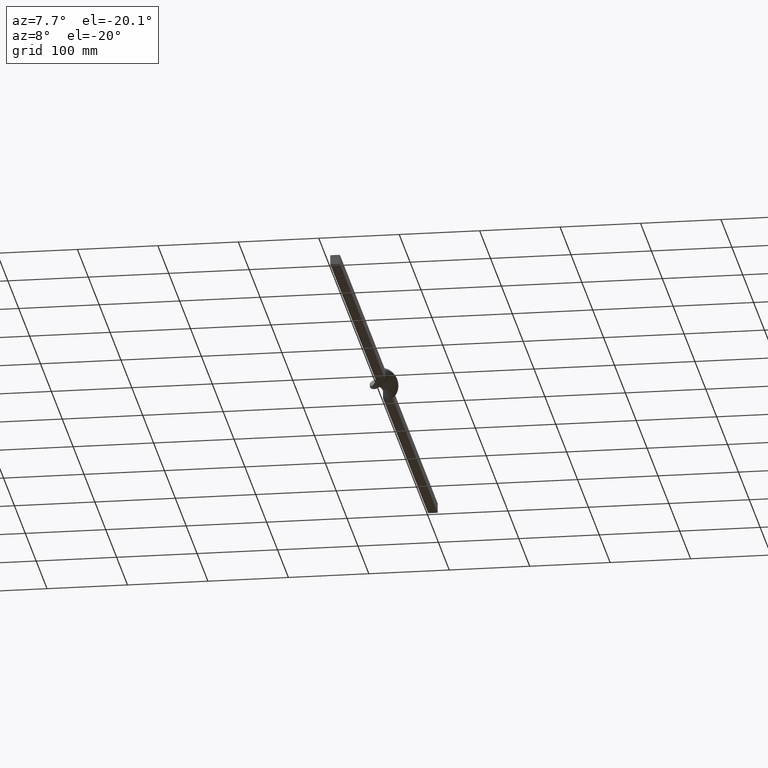
[diagram: clean part render]
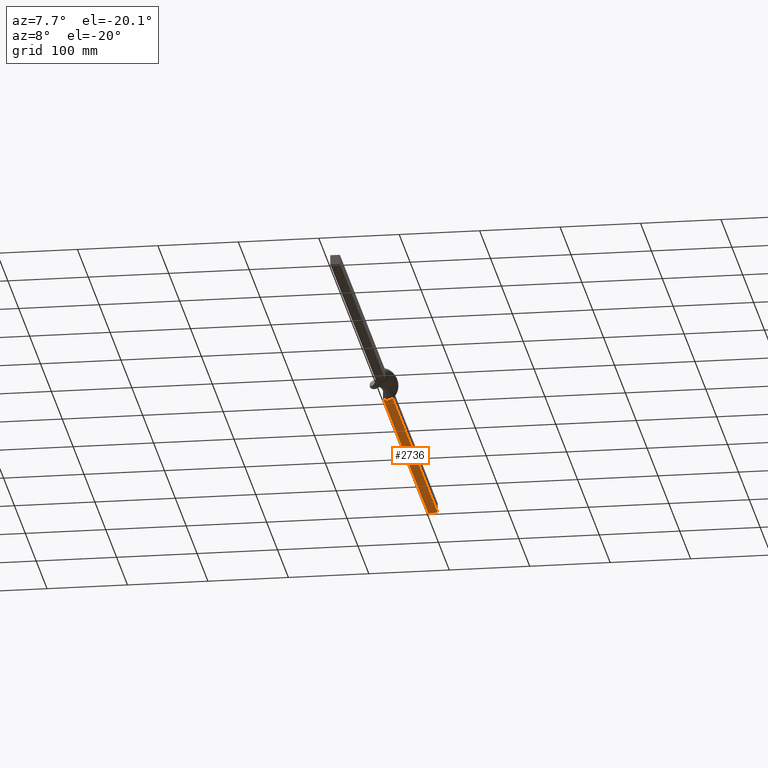
[diagram: same view with one face highlighted and labeled with its STEP entity id]
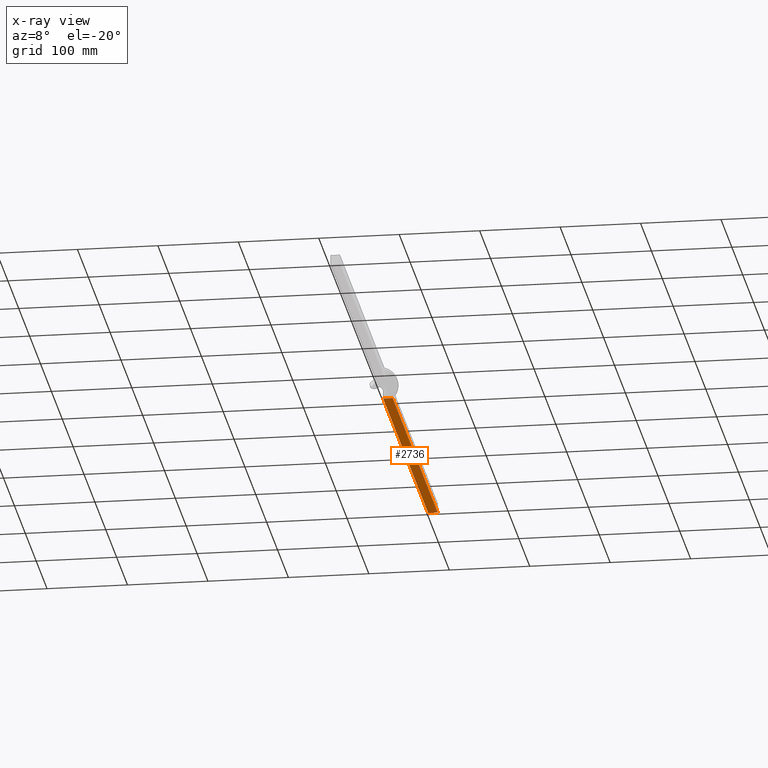
[diagram: x-ray of the same camera — body ghosted, the highlighted face saturated]
A machine part, auxiliary view. The second image highlights one B-rep face of the part: STEP entity #2736.
The next image is the same camera in x-ray: the body ghosted, the highlighted face saturated — about 0% of this face is hidden behind the body in this view.
In plain terms, the highlighted planar face has unit normal (0, 0, 1).
Its self-contained STEP definition (entity closure, byte-faithful):
#48 = PLANE ( 'NONE',  #8875 ) ;
#998 = EDGE_CURVE ( 'NONE', #7205, #10800, #8374, .T. ) ;
#1045 = B_SPLINE_CURVE_WITH_KNOTS ( 'NONE', 3,
 ( #5743, #7607, #5777, #8484 ),
 .UNSPECIFIED., .F., .F.,
 ( 4, 4 ),
 ( -0.8819705627484772936, -0.4669705627484773136 ),
 .UNSPECIFIED. ) ;
#1227 = CARTESIAN_POINT ( 'NONE',  ( 1.999985710700654673, 450.0000000000001705, -6.000004763080885262 ) ) ;
#1456 = CARTESIAN_POINT ( 'NONE',  ( -6.000014289276658808, 173.3333333333332291, -5.999985710689334617 ) ) ;
#1722 = CARTESIAN_POINT ( 'NONE',  ( -6.000014289276650814, 35.00000000000000000, -5.999985710689321294 ) ) ;
#1724 = CARTESIAN_POINT ( 'NONE',  ( -6.000014286162817179, 35.00000000000000711, -5.999985710689327512 ) ) ;
#1982 = CARTESIAN_POINT ( 'NONE',  ( -6.000014289276659696, 450.0000000000000000, -5.999985710689335505 ) ) ;
#2274 = ORIENTED_EDGE ( 'NONE', *, *, #5702, .F. ) ;
#2736 = ADVANCED_FACE ( 'NONE', ( #6602 ), #48, .F. ) ;
#2851 = CARTESIAN_POINT ( 'NONE',  ( 5.999985710689309748, 450.0000000000000000, -6.000014289276665913 ) ) ;
#2965 = CARTESIAN_POINT ( 'NONE',  ( -2.000014289288006175, 450.0000000000000568, -5.999995236885115268 ) ) ;
#3343 = CARTESIAN_POINT ( 'NONE',  ( 5.999985710689309748, 450.0000000000000000, -6.000014289276665913 ) ) ;
#3668 = VERTEX_POINT ( 'NONE', #4621 ) ;
#4621 = CARTESIAN_POINT ( 'NONE',  ( 5.999985710689327512, 35.00000000000000000, -6.000014285811238857 ) ) ;
#4633 = VERTEX_POINT ( 'NONE', #3343 ) ;
#4986 = CARTESIAN_POINT ( 'NONE',  ( -6.000014286162817179, 35.00000000000000711, -5.999985710689327512 ) ) ;
#5028 = CARTESIAN_POINT ( 'NONE',  ( -6.000014289276650814, 35.00000000000002132, -5.999985710689321294 ) ) ;
#5581 = LINE ( 'NONE', #5028, #10099 ) ;
#5702 = EDGE_CURVE ( 'NONE', #3668, #4633, #1045, .T. ) ;
#5743 = CARTESIAN_POINT ( 'NONE',  ( 5.999985710689327512, 35.00000000000000000, -6.000014285811238857 ) ) ;
#5777 = CARTESIAN_POINT ( 'NONE',  ( 5.999985710689307083, 311.6666666666668561, -6.000014289276655255 ) ) ;
#5863 = DIRECTION ( 'NONE',  ( -0.9999999999971640463, -0.000000000000000000, 2.381548944163647263E-06 ) ) ;
#5933 = EDGE_CURVE ( 'NONE', #3668, #7205, #5581, .T. ) ;
#5993 = ORIENTED_EDGE ( 'NONE', *, *, #10016, .F. ) ;
#6602 = FACE_OUTER_BOUND ( 'NONE', #7479, .T. ) ;
#6816 = CARTESIAN_POINT ( 'NONE',  ( -6.000014289276659696, 450.0000000000000000, -5.999985710689335505 ) ) ;
#6837 = ORIENTED_EDGE ( 'NONE', *, *, #5933, .T. ) ;
#7205 = VERTEX_POINT ( 'NONE', #1724 ) ;
#7479 = EDGE_LOOP ( 'NONE', ( #6837, #7926, #5993, #2274 ) ) ;
#7607 = CARTESIAN_POINT ( 'NONE',  ( 5.999985710689324847, 173.3333333333332291, -6.000014289276664137 ) ) ;
#7750 = B_SPLINE_CURVE_WITH_KNOTS ( 'NONE', 3,
 ( #2851, #1227, #2965, #1982 ),
 .UNSPECIFIED., .F., .F.,
 ( 4, 4 ),
 ( 0.000000000000000000, 0.01200000000000000025 ),
 .UNSPECIFIED. ) ;
#7926 = ORIENTED_EDGE ( 'NONE', *, *, #998, .T. ) ;
#8374 = B_SPLINE_CURVE_WITH_KNOTS ( 'NONE', 3,
 ( #4986, #1456, #8496, #11082 ),
 .UNSPECIFIED., .F., .F.,
 ( 4, 4 ),
 ( -0.8819705627484772936, -0.4669705627484773136 ),
 .UNSPECIFIED. ) ;
#8484 = CARTESIAN_POINT ( 'NONE',  ( 5.999985710689309748, 450.0000000000000000, -6.000014289276665913 ) ) ;
#8496 = CARTESIAN_POINT ( 'NONE',  ( -6.000014289276655255, 311.6666666666668561, -5.999985710689326623 ) ) ;
#8691 = DIRECTION ( 'NONE',  ( 0.9999999999971640463, 0.000000000000000000, -2.381548944163647263E-06 ) ) ;
#8875 = AXIS2_PLACEMENT_3D ( 'NONE', #1722, #9563, #8691 ) ;
#9563 = DIRECTION ( 'NONE',  ( 2.381548944163647687E-06, 3.553053060820569180E-17, 0.9999999999971641573 ) ) ;
#10016 = EDGE_CURVE ( 'NONE', #4633, #10800, #7750, .T. ) ;
#10099 = VECTOR ( 'NONE', #5863, 1000.000000000000227 ) ;
#10800 = VERTEX_POINT ( 'NONE', #6816 ) ;
#11082 = CARTESIAN_POINT ( 'NONE',  ( -6.000014289276659696, 450.0000000000000000, -5.999985710689335505 ) ) ;